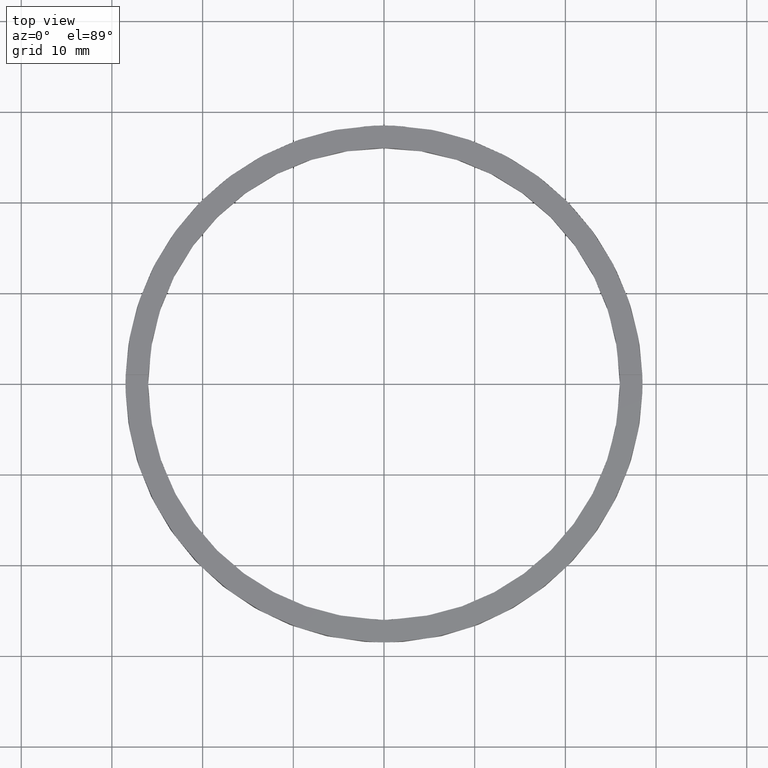
[diagram: clean part render]
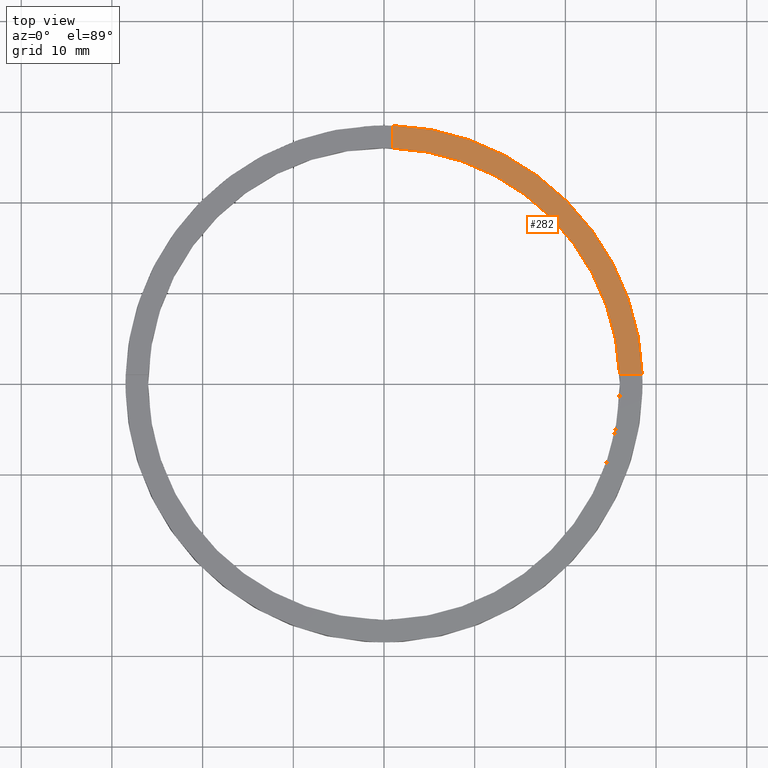
[diagram: same view with one face highlighted and labeled with its STEP entity id]
A machine part, top view. The second image highlights one B-rep face of the part: STEP entity #282.
In plain terms, the highlighted planar face has unit normal (0, 0, 1).
Its self-contained STEP definition (entity closure, byte-faithful):
#5 = EDGE_CURVE ( 'NONE', #285, #237, #140, .T. ) ;
#12 = DIRECTION ( 'NONE',  ( 1.000000000000000000, 0.000000000000000000, 0.000000000000000000 ) ) ;
#50 = EDGE_LOOP ( 'NONE', ( #358, #331, #353, #352 ) ) ;
#52 = DIRECTION ( 'NONE',  ( 0.000000000000000000, 0.000000000000000000, 1.000000000000000000 ) ) ;
#99 = PLANE ( 'NONE',  #638 ) ;
#102 = DIRECTION ( 'NONE',  ( 0.000000000000000000, 0.000000000000000000, 1.000000000000000000 ) ) ;
#117 = CARTESIAN_POINT ( 'NONE',  ( 28.48245073725223264, 0.9999999999998432365, 2.500000000000000000 ) ) ;
#140 = CIRCLE ( 'NONE', #374, 26.00000000000000355 ) ;
#148 = DIRECTION ( 'NONE',  ( 0.000000000000000000, 1.000000000000000000, 0.000000000000000000 ) ) ;
#212 = CIRCLE ( 'NONE', #576, 28.50000000000000000 ) ;
#222 = DIRECTION ( 'NONE',  ( 1.000000000000000000, 0.000000000000000000, -0.000000000000000000 ) ) ;
#237 = VERTEX_POINT ( 'NONE', #639 ) ;
#259 = CARTESIAN_POINT ( 'NONE',  ( 25.98076211353317078, 0.9999999999998430145, 2.500000000000000000 ) ) ;
#270 = EDGE_CURVE ( 'NONE', #761, #285, #420, .T. ) ;
#282 = ADVANCED_FACE ( 'NONE', ( #700 ), #99, .T. ) ;
#285 = VERTEX_POINT ( 'NONE', #259 ) ;
#298 = VERTEX_POINT ( 'NONE', #387 ) ;
#331 = ORIENTED_EDGE ( 'NONE', *, *, #5, .F. ) ;
#342 = CARTESIAN_POINT ( 'NONE',  ( 0.9999999999999735767, 18.50000000000000355, 2.500000000000000000 ) ) ;
#352 = ORIENTED_EDGE ( 'NONE', *, *, #421, .T. ) ;
#353 = ORIENTED_EDGE ( 'NONE', *, *, #270, .F. ) ;
#358 = ORIENTED_EDGE ( 'NONE', *, *, #729, .F. ) ;
#374 = AXIS2_PLACEMENT_3D ( 'NONE', #717, #102, #781 ) ;
#387 = CARTESIAN_POINT ( 'NONE',  ( 0.9999999999999735767, 28.48245073725223264, 2.500000000000000000 ) ) ;
#420 = LINE ( 'NONE', #521, #438 ) ;
#421 = EDGE_CURVE ( 'NONE', #761, #298, #212, .T. ) ;
#438 = VECTOR ( 'NONE', #466, 1000.000000000000000 ) ;
#466 = DIRECTION ( 'NONE',  ( -1.000000000000000000, -4.336808689942018352E-17, -0.000000000000000000 ) ) ;
#521 = CARTESIAN_POINT ( 'NONE',  ( 18.50000000000000000, 0.9999999999998427924, 2.500000000000000000 ) ) ;
#522 = DIRECTION ( 'NONE',  ( 0.000000000000000000, 0.000000000000000000, 1.000000000000000000 ) ) ;
#554 = CARTESIAN_POINT ( 'NONE',  ( 0.000000000000000000, 0.000000000000000000, 2.500000000000000000 ) ) ;
#576 = AXIS2_PLACEMENT_3D ( 'NONE', #750, #52, #12 ) ;
#638 = AXIS2_PLACEMENT_3D ( 'NONE', #554, #522, #222 ) ;
#639 = CARTESIAN_POINT ( 'NONE',  ( 0.9999999999999735767, 25.98076211353316367, 2.500000000000000000 ) ) ;
#668 = VECTOR ( 'NONE', #148, 1000.000000000000000 ) ;
#700 = FACE_OUTER_BOUND ( 'NONE', #50, .T. ) ;
#717 = CARTESIAN_POINT ( 'NONE',  ( 0.000000000000000000, 0.000000000000000000, 2.500000000000000000 ) ) ;
#729 = EDGE_CURVE ( 'NONE', #237, #298, #734, .T. ) ;
#734 = LINE ( 'NONE', #342, #668 ) ;
#750 = CARTESIAN_POINT ( 'NONE',  ( 0.000000000000000000, 0.000000000000000000, 2.500000000000000000 ) ) ;
#761 = VERTEX_POINT ( 'NONE', #117 ) ;
#781 = DIRECTION ( 'NONE',  ( 1.000000000000000000, 0.000000000000000000, 0.000000000000000000 ) ) ;